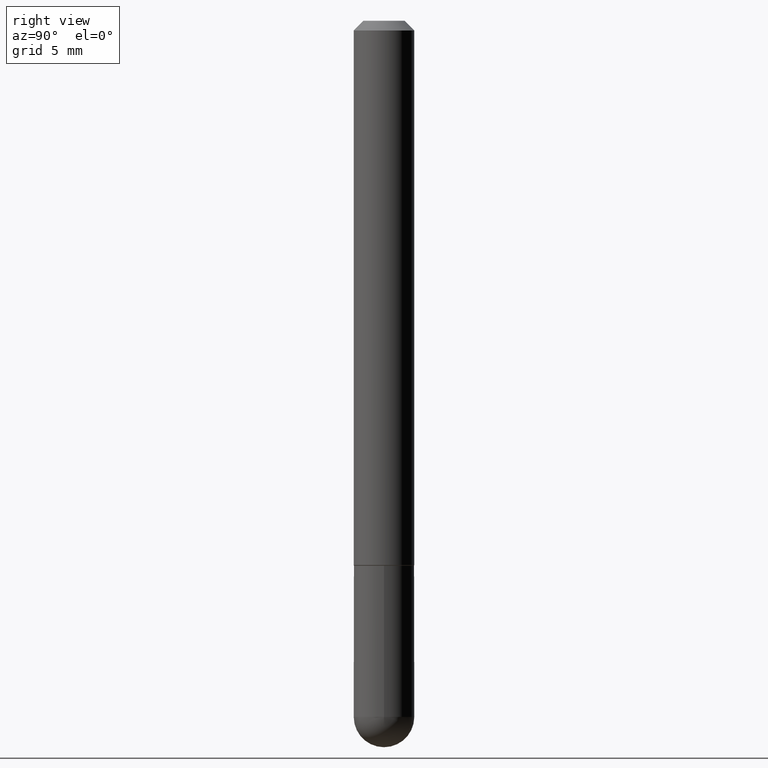
[diagram: clean part render]
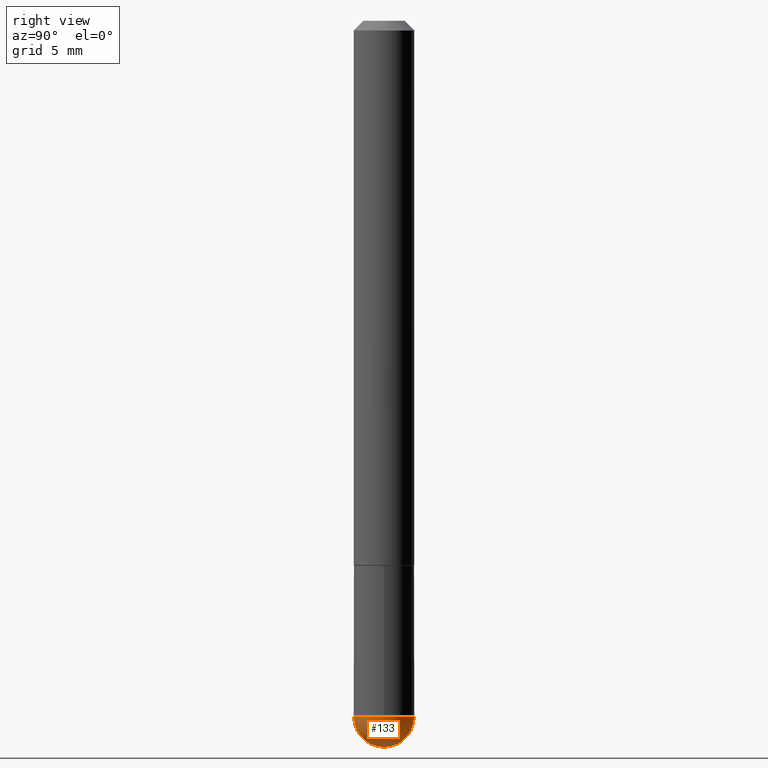
[diagram: same view with one face highlighted and labeled with its STEP entity id]
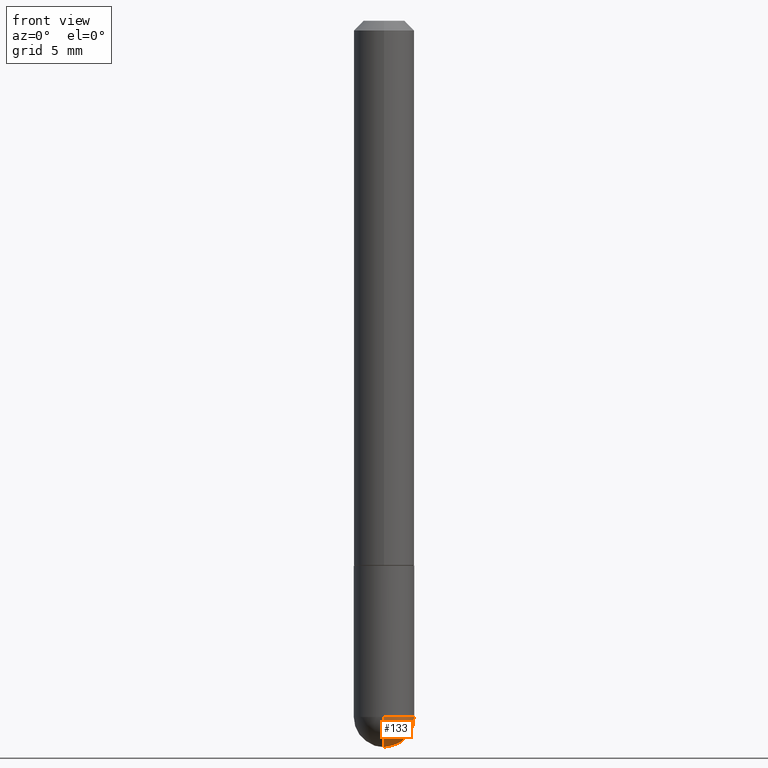
[diagram: same view with one face highlighted and labeled with its STEP entity id]
A machine part, right view. The second image highlights one B-rep face of the part: STEP entity #133.
A second angle (front view) of the same face is appended — the face is thin or edge-on in the first view.
In plain terms, the highlighted spherical surface has radius 1.5875 mm.
Its self-contained STEP definition (entity closure, byte-faithful):
#14 = CARTESIAN_POINT ( 'NONE',  ( 3.184241630977247611E-29, -5.493186792727071849E-15, -1.437500000000000000 ) ) ;
#36 = CARTESIAN_POINT ( 'NONE',  ( 3.184241630977247611E-29, -5.493186792727071849E-15, -1.437500000000000000 ) ) ;
#37 = CARTESIAN_POINT ( 'NONE',  ( 4.364351673554256397E-16, 0.06249999999999480971, -1.437500000000000444 ) ) ;
#41 = EDGE_CURVE ( 'NONE', #215, #213, #54, .T. ) ;
#52 = EDGE_LOOP ( 'NONE', ( #302, #203, #96, #308 ) ) ;
#54 = CIRCLE ( 'NONE', #250, 0.06249999999999995143 ) ;
#59 = VERTEX_POINT ( 'NONE', #158 ) ;
#73 = DIRECTION ( 'NONE',  ( 6.982962677686266711E-15, 1.000000000000000000, 0.000000000000000000 ) ) ;
#83 = DIRECTION ( 'NONE',  ( -7.105427357601001859E-15, -1.000000000000000000, 0.000000000000000000 ) ) ;
#92 = FACE_OUTER_BOUND ( 'NONE', #52, .T. ) ;
#96 = ORIENTED_EDGE ( 'NONE', *, *, #41, .F. ) ;
#97 = AXIS2_PLACEMENT_3D ( 'NONE', #14, #115, #83 ) ;
#102 = EDGE_CURVE ( 'NONE', #139, #215, #135, .T. ) ;
#115 = DIRECTION ( 'NONE',  ( -1.000000000000000000, 7.105427357601001070E-15, -4.926315508542082329E-29 ) ) ;
#125 = CIRCLE ( 'NONE', #97, 0.06250000000000018041 ) ;
#133 = ADVANCED_FACE ( 'NONE', ( #92 ), #376, .T. ) ;
#135 = CIRCLE ( 'NONE', #188, 0.06249999999999995143 ) ;
#139 = VERTEX_POINT ( 'NONE', #345 ) ;
#149 = CIRCLE ( 'NONE', #156, 0.06250000000000018041 ) ;
#155 = DIRECTION ( 'NONE',  ( -2.445468806185136597E-29, 3.491481338843145583E-15, 1.000000000000000000 ) ) ;
#156 = AXIS2_PLACEMENT_3D ( 'NONE', #36, #192, #73 ) ;
#158 = CARTESIAN_POINT ( 'NONE',  ( 3.339755826017505008E-29, -5.707577355157432999E-15, -1.500000000000000222 ) ) ;
#175 = EDGE_CURVE ( 'NONE', #59, #213, #149, .T. ) ;
#183 = DIRECTION ( 'NONE',  ( -2.445468806185136597E-29, 3.491481338843145583E-15, 1.000000000000000000 ) ) ;
#188 = AXIS2_PLACEMENT_3D ( 'NONE', #380, #155, #285 ) ;
#192 = DIRECTION ( 'NONE',  ( 1.000000000000000000, -6.982962677686265922E-15, 4.883557194083112340E-29 ) ) ;
#203 = ORIENTED_EDGE ( 'NONE', *, *, #175, .T. ) ;
#213 = VERTEX_POINT ( 'NONE', #37 ) ;
#215 = VERTEX_POINT ( 'NONE', #292 ) ;
#219 = DIRECTION ( 'NONE',  ( 1.000000000000000000, -6.982962677686268288E-15, 0.000000000000000000 ) ) ;
#220 = DIRECTION ( 'NONE',  ( -1.000000000000000000, 6.982962677686265922E-15, -4.883557194083112340E-29 ) ) ;
#250 = AXIS2_PLACEMENT_3D ( 'NONE', #315, #183, #219 ) ;
#285 = DIRECTION ( 'NONE',  ( 1.000000000000000000, -6.982962677686268288E-15, 0.000000000000000000 ) ) ;
#290 = CARTESIAN_POINT ( 'NONE',  ( 3.184241630977247611E-29, -5.493186792727071849E-15, -1.437500000000000000 ) ) ;
#292 = CARTESIAN_POINT ( 'NONE',  ( 0.06249999999999995143, -4.909895632748172453E-15, -1.437500000000000222 ) ) ;
#302 = ORIENTED_EDGE ( 'NONE', *, *, #341, .F. ) ;
#308 = ORIENTED_EDGE ( 'NONE', *, *, #102, .F. ) ;
#315 = CARTESIAN_POINT ( 'NONE',  ( 3.515361408891134418E-29, -5.019004424587023131E-15, -1.437500000000000222 ) ) ;
#341 = EDGE_CURVE ( 'NONE', #59, #139, #125, .T. ) ;
#345 = CARTESIAN_POINT ( 'NONE',  ( -4.440892098500294840E-16, -0.06250000000000532907, -1.437500000000000000 ) ) ;
#347 = DIRECTION ( 'NONE',  ( 6.982962677686265922E-15, 1.000000000000000000, -4.370956789862807739E-15 ) ) ;
#359 = AXIS2_PLACEMENT_3D ( 'NONE', #290, #220, #347 ) ;
#376 = SPHERICAL_SURFACE ( 'NONE', #359, 0.06250000000000018041 ) ;
#380 = CARTESIAN_POINT ( 'NONE',  ( 3.515361408891134418E-29, -5.019004424587023131E-15, -1.437500000000000222 ) ) ;